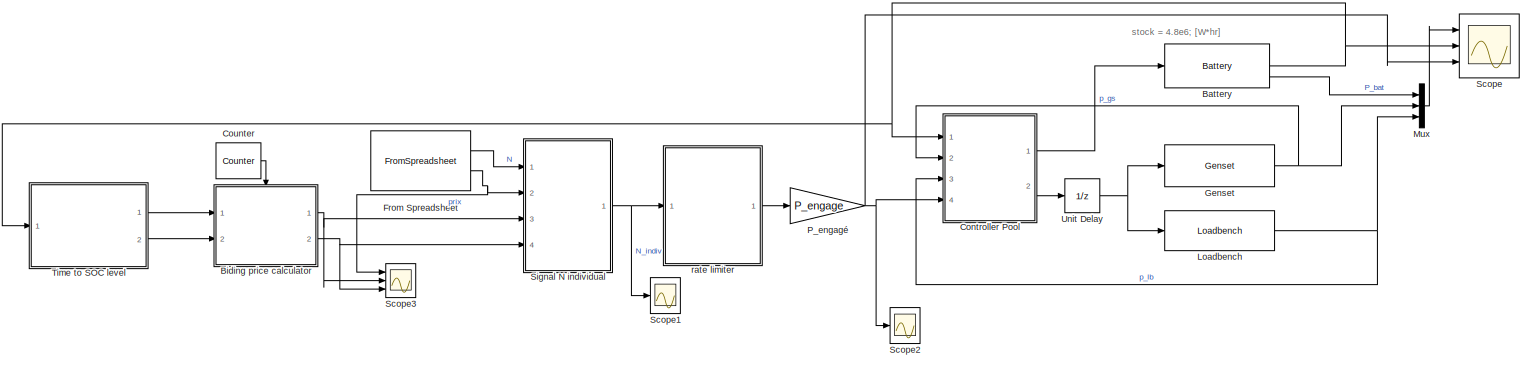
[diagram: root canvas - part 1/1, most of the canvas]
MODEL slx_1ad34d5d79cd
KIND model
CONFIG AbsTol = auto
CONFIG EnableMultiTasking = off
CONFIG FixedStep = auto
CONFIG MaxStep = auto
CONFIG MinStep = auto
CONFIG RelTol = 1e-3
CONFIG SampleTimeConstraint = Unconstrained
CONFIG SolverName = FixedStepDiscrete
CONFIG StartTime = 0.0
CONFIG StopTime = 2600000
BLOCK [Reference] Battery  REF=Assets/Battery
  Ports = [1, 3]
  SourceBlock = Assets/Battery
  SourceProductName = My Library
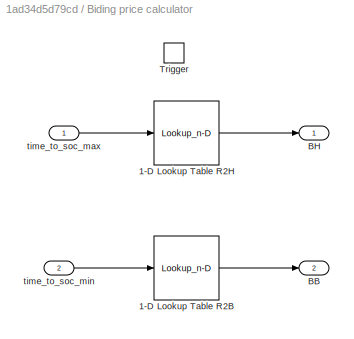
BLOCK [SubSystem] Biding price calculator
  Ports = [2, 2, 0, 1]
  RequestExecContextInheritance = off
  TreatAsAtomicUnit = on
BLOCK [Lookup_n-D] Biding price calculator/1-D Lookup Table R2B
  BeginIndexSearchUsingPreviousIndexResult = on
  BreakpointsForDimension1 = Breakpoints
  InputPortMap = u0
  InternalRulePriority = Speed
  NumberOfTableDimensions = 1
  Ports = [1, 1]
  RndMeth = Simplest
  Table = R2_B
BLOCK [Lookup_n-D] Biding price calculator/1-D Lookup Table R2H
  BeginIndexSearchUsingPreviousIndexResult = on
  BreakpointsForDimension1 = Breakpoints
  InputPortMap = u0
  InternalRulePriority = Speed
  NumberOfTableDimensions = 1
  Ports = [1, 1]
  RndMeth = Simplest
  Table = R2_H
BLOCK [Outport] Biding price calculator/BB
  Port = 2
BLOCK [Outport] Biding price calculator/BH
BLOCK [TriggerPort] Biding price calculator/Trigger
  Ports = []
  StatesWhenEnabling = held
  VariantControl = (inherit)
BLOCK [Inport] Biding price calculator/time_to_soc_max
BLOCK [Inport] Biding price calculator/time_to_soc_min
  Port = 2
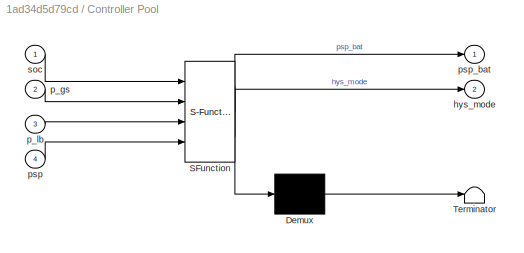
BLOCK [SubSystem] Controller Pool
  ErrorFcn = Stateflow.Translate.translate
  PermitHierarchicalResolution = ExplicitOnly
  Ports = [4, 2]
  RequestExecContextInheritance = off
  SFBlockType = Chart
  TreatAsAtomicUnit = on
BLOCK [Demux] Controller Pool/ Demux 
  Outputs = 1
  Ports = [1, 1]
BLOCK [S-Function] Controller Pool/ SFunction 
  EnableBusSupport = on
  FunctionName = sf_sfun
  Parameters = hys_max,hys_min,max_soc,min_soc
  PortCounts = [4 3]
  Ports = [4, 3]
  SFcnIsStateOwnerBlock = off
  SFunctionDeploymentMode = off
  Tag = Stateflow S-Function 1
BLOCK [Terminator] Controller Pool/ Terminator 
BLOCK [Outport] Controller Pool/hys_mode
  Port = 2
BLOCK [Inport] Controller Pool/p_gs
  Port = 2
BLOCK [Inport] Controller Pool/p_lb
  Port = 3
BLOCK [Inport] Controller Pool/psp
  Port = 4
BLOCK [Outport] Controller Pool/psp_bat
BLOCK [Inport] Controller Pool/soc
BLOCK [Reference] Counter  REF=eeGeneralControl/Counter
  Ports = [0, 1]
  SourceBlock = eeGeneralControl/Counter
  SourceProductBaseCode = PS
  SourceType = Counter
BLOCK [FromSpreadsheet] From Spreadsheet
  FileName = N_Jan.xlsx
  Ports = [0, 2]
  SheetName = 30
BLOCK [Reference] Genset  REF=Assets/Genset
  Ports = [1, 1]
  SourceBlock = Assets/Genset
  SourceProductName = My Library
BLOCK [Reference] Loadbench  REF=Assets/Loadbench
  Ports = [1, 1]
  SourceBlock = Assets/Loadbench
  SourceProductName = My Library
BLOCK [Mux] Mux
  DisplayOption = bar
  Inputs = 3
  Ports = [3, 1]
BLOCK [Gain] P_engagé
  Gain = P_engage
BLOCK [Scope] Scope
  Floating = off
  NumInputPorts = 3
  Ports = [3]
  ScopeSpecificationString = Simulink.scopes.TimeScopeBlockCfg('CurrentConfiguration', extmgr.ConfigurationSet(extmgr.Configuration('Core','General UI',true),extmgr.Configuration('Core','Source UI',true),extmgr.Configuration('Sources','WiredSimulink',true,'DataLoggingVariableName','ScopeData1'),extmgr.Configuration('Visuals','Time Domain',true,'SerializedDisplays',{struct('MinYLimReal','-6250000.00000','MaxYLimReal','6250000....<+2955ch>
BLOCK [Scope] Scope1
  Commented = on
  Floating = off
  NumInputPorts = 1
  Ports = [1]
  ScopeSpecificationString = Simulink.scopes.TimeScopeBlockCfg('CurrentConfiguration', extmgr.ConfigurationSet(extmgr.Configuration('Core','General UI',true),extmgr.Configuration('Core','Source UI',true),extmgr.Configuration('Sources','WiredSimulink',true,'DataLoggingVariableName','ScopeData2'),extmgr.Configuration('Visuals','Time Domain',true,'SerializedDisplays',{struct('MinYLimReal','-1.25','MaxYLimReal','1.25','YLabelReal...<+1464ch>
BLOCK [Scope] Scope2
  Commented = on
  Floating = off
  NumInputPorts = 1
  Ports = [1]
  ScopeSpecificationString = Simulink.scopes.TimeScopeBlockCfg('CurrentConfiguration', extmgr.ConfigurationSet(extmgr.Configuration('Core','General UI',true),extmgr.Configuration('Core','Source UI',true),extmgr.Configuration('Sources','WiredSimulink',true,'DataLoggingVariableName','ScopeData3'),extmgr.Configuration('Visuals','Time Domain',true,'SerializedDisplays',{struct('MinYLimReal','-5000000.00000','MaxYLimReal','5000000....<+1529ch>
BLOCK [Scope] Scope3
  Commented = on
  Floating = off
  NumInputPorts = 3
  Ports = [3]
  ScopeSpecificationString = Simulink.scopes.TimeScopeBlockCfg('CurrentConfiguration', extmgr.ConfigurationSet(extmgr.Configuration('Core','General UI',true),extmgr.Configuration('Core','Source UI',true),extmgr.Configuration('Sources','WiredSimulink',true),extmgr.Configuration('Visuals','Time Domain',true,'SerializedDisplays',{struct('MinYLimReal','-38.31213','MaxYLimReal','88.48695','YLabelReal','','MinYLimMag','0.00000','Ma...<+1490ch>
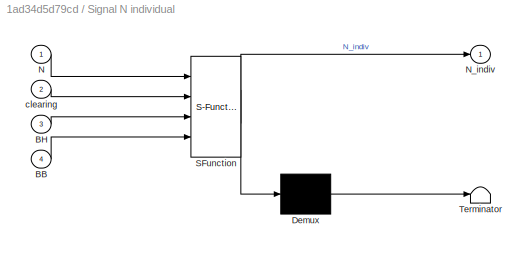
BLOCK [SubSystem] Signal N individual
  ErrorFcn = Stateflow.Translate.translate
  PermitHierarchicalResolution = ExplicitOnly
  Ports = [4, 1]
  RequestExecContextInheritance = off
  SFBlockType = Chart
  TreatAsAtomicUnit = on
BLOCK [Demux] Signal N individual/ Demux 
  Outputs = 1
  Ports = [1, 1]
BLOCK [S-Function] Signal N individual/ SFunction 
  EnableBusSupport = on
  FunctionName = sf_sfun
  PortCounts = [4 2]
  Ports = [4, 2]
  SFcnIsStateOwnerBlock = off
  SFunctionDeploymentMode = off
  Tag = Stateflow S-Function 3
BLOCK [Terminator] Signal N individual/ Terminator 
BLOCK [Inport] Signal N individual/BB
  Port = 4
BLOCK [Inport] Signal N individual/BH
  Port = 3
BLOCK [Inport] Signal N individual/N
BLOCK [Outport] Signal N individual/N_indiv
BLOCK [Inport] Signal N individual/clearing
  Port = 2
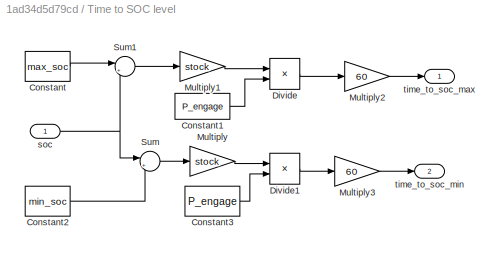
BLOCK [SubSystem] Time to SOC level
  Ports = [1, 2]
  RequestExecContextInheritance = off
BLOCK [Constant] Time to SOC level/Constant
  Value = max_soc
BLOCK [Constant] Time to SOC level/Constant1
  Value = P_engage
BLOCK [Constant] Time to SOC level/Constant2
  Value = min_soc
BLOCK [Constant] Time to SOC level/Constant3
  Value = P_engage
BLOCK [Product] Time to SOC level/Divide
  Inputs = */
  Ports = [2, 1]
BLOCK [Product] Time to SOC level/Divide1
  Inputs = */
  Ports = [2, 1]
BLOCK [Gain] Time to SOC level/Multiply
  Gain = stock
BLOCK [Gain] Time to SOC level/Multiply1
  Gain = stock
BLOCK [Gain] Time to SOC level/Multiply2
  Gain = 60
BLOCK [Gain] Time to SOC level/Multiply3
  Gain = 60
BLOCK [Sum] Time to SOC level/Sum
  Inputs = |+-
  NameLocation = top
  Ports = [2, 1]
BLOCK [Sum] Time to SOC level/Sum1
  Inputs = |+-
  Ports = [2, 1]
BLOCK [Inport] Time to SOC level/soc
  NameLocation = top
BLOCK [Outport] Time to SOC level/time_to_soc_max
BLOCK [Outport] Time to SOC level/time_to_soc_min
  Port = 2
BLOCK [UnitDelay] Unit Delay
  HasFrameUpgradeWarning = on
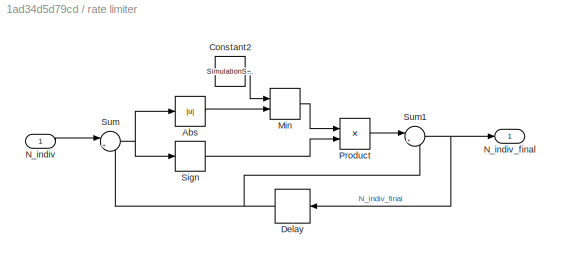
BLOCK [SubSystem] rate limiter
  Ports = [1, 1]
  RequestExecContextInheritance = off
BLOCK [Abs] rate limiter/Abs
  NameLocation = top
  SaturateOnIntegerOverflow = off
BLOCK [Constant] rate limiter/Constant2
  Value = SimulationStep/300
BLOCK [Delay] rate limiter/Delay
  DelayLength = 1
  InputPortMap = u0
  Ports = [1, 1]
BLOCK [MinMax] rate limiter/Min
  Inputs = 2
  Ports = [2, 1]
BLOCK [Inport] rate limiter/N_indiv
BLOCK [Outport] rate limiter/N_indiv_final
BLOCK [Product] rate limiter/Product
  Ports = [2, 1]
BLOCK [Signum] rate limiter/Sign
BLOCK [Sum] rate limiter/Sum
  Inputs = |+-
  Ports = [2, 1]
BLOCK [Sum] rate limiter/Sum1
  Inputs = |++
  Ports = [2, 1]
ANNOTATION (root): stock = 4.8e6; [W*hr]
NET Battery:2 -> Controller Pool:1, Scope:2, Time to SOC level:1
LINE Battery:3 -> Mux:1
LINE Biding price calculator/1-D Lookup Table R2B:1 -> Biding price calculator/BB:1
LINE Biding price calculator/1-D Lookup Table R2H:1 -> Biding price calculator/BH:1
LINE Biding price calculator/time_to_soc_max:1 -> Biding price calculator/1-D Lookup Table R2H:1
LINE Biding price calculator/time_to_soc_min:1 -> Biding price calculator/1-D Lookup Table R2B:1
NET Biding price calculator:1 -> Scope3:2, Signal N individual:3
NET Biding price calculator:2 -> Scope3:3, Signal N individual:4
LINE Controller Pool:1 -> Battery:1
LINE Controller Pool:2 -> Unit Delay:1
LINE Counter:1 -> Biding price calculator:trigger
LINE From Spreadsheet:1 -> Signal N individual:1
NET From Spreadsheet:2 -> Scope3:1, Signal N individual:2
NET Genset:1 -> Controller Pool:2, Mux:2
NET Loadbench:1 -> Controller Pool:3, Mux:3
LINE Mux:1 -> Scope:1
NET P_engagé:1 -> Controller Pool:4, Scope2:1, Scope:3
NET Signal N individual:1 -> Scope1:1, rate limiter:1
LINE Time to SOC level/Constant1:1 -> Time to SOC level/Divide:2
LINE Time to SOC level/Constant2:1 -> Time to SOC level/Sum:2
LINE Time to SOC level/Constant3:1 -> Time to SOC level/Divide1:2
LINE Time to SOC level/Constant:1 -> Time to SOC level/Sum1:1
LINE Time to SOC level/Divide1:1 -> Time to SOC level/Multiply3:1
LINE Time to SOC level/Divide:1 -> Time to SOC level/Multiply2:1
LINE Time to SOC level/Multiply1:1 -> Time to SOC level/Divide:1
LINE Time to SOC level/Multiply2:1 -> Time to SOC level/time_to_soc_max:1
LINE Time to SOC level/Multiply3:1 -> Time to SOC level/time_to_soc_min:1
LINE Time to SOC level/Multiply:1 -> Time to SOC level/Divide1:1
LINE Time to SOC level/Sum1:1 -> Time to SOC level/Multiply1:1
LINE Time to SOC level/Sum:1 -> Time to SOC level/Multiply:1
NET Time to SOC level/soc:1 -> Time to SOC level/Sum1:2, Time to SOC level/Sum:1
LINE Time to SOC level:1 -> Biding price calculator:1
LINE Time to SOC level:2 -> Biding price calculator:2
NET Unit Delay:1 -> Genset:1, Loadbench:1
LINE rate limiter/Abs:1 -> rate limiter/Min:2
LINE rate limiter/Constant2:1 -> rate limiter/Min:1
NET rate limiter/Delay:1 -> rate limiter/Sum1:2, rate limiter/Sum:2
LINE rate limiter/Min:1 -> rate limiter/Product:1
LINE rate limiter/N_indiv:1 -> rate limiter/Sum:1
LINE rate limiter/Product:1 -> rate limiter/Sum1:1
LINE rate limiter/Sign:1 -> rate limiter/Product:2
NET rate limiter/Sum1:1 -> rate limiter/Delay:1, rate limiter/N_indiv_final:1
NET rate limiter/Sum:1 -> rate limiter/Abs:1, rate limiter/Sign:1
LINE rate limiter:1 -> P_engagé:1
note: NET lines group one-source signal fan-out (src -> all destinations, sorted); 1:1 wires keep LINE
CHART Controller Pool states=19 transitions=27
  STATE_LABEL '?'
  STATE_LABEL 'Battery1\nentry : p_cons = psp_bat;\nduring :\npsp_gs = 0;\npsp_lb = 0;\n'
  STATE_LABEL 'Genset1\nentry : p_cons = psp_gs;\nduring :\npsp_lb = 0;\npsp_bat = 0;\n'
  STATE_LABEL 'Loadbench1\nentry : p_cons = psp_lb\nduring :\npsp_gs = 0;\npsp_bat = 0;\n'
  STATE_LABEL '[SOC < min_soc && p_cons >=0]'
  STATE_LABEL '[min_soc < SOC < max_soc]'
  STATE_LABEL '[SOC > max_soc && p_cons <=0]'
  STATE_LABEL '[min_soc < SOC < max_soc]'
  STATE_LABEL 'Battery1\nentry : p_cons = psp_bat;\nduring :\npsp_gs = 0;\npsp_lb = 0;\n'
  STATE_LABEL 'Genset1\nentry : p_cons = psp_gs;\nduring :\npsp_lb = 0;\npsp_bat = 0;\n'
  STATE_LABEL 'Loadbench1\nentry : p_cons = psp_lb\nduring :\npsp_gs = 0;\npsp_bat = 0;\n'
  STATE_LABEL 'Hysteresis_mode'
  STATE_LABEL 'Mode___1\nen : hys_mode = -1;\ndu : psp_bat = psp - p_lb - p_gs;'
  STATE_LABEL 'Mode_0\nen : hys_mode = 0;\ndu : psp_bat = psp - p_lb - p_gs;'
  STATE_LABEL 'Mode_1\nen : hys_mode = 1;\ndu : psp_bat = psp - p_lb - p_gs;'
  STATE_LABEL '[soc <= min_soc]'
  STATE_LABEL '[soc >= max_soc]'
  STATE_LABEL '[soc >= hys_min]'
  STATE_LABEL '[soc <= hys_max]'
  STATE_LABEL 'Mode___1\nen : hys_mode = -1;\ndu : psp_bat = psp - p_lb - p_gs;'
  STATE_LABEL 'Mode_0\nen : hys_mode = 0;\ndu : psp_bat = psp - p_lb - p_gs;'
  STATE_LABEL 'Mode_1\nen : hys_mode = 1;\ndu : psp_bat = psp - p_lb - p_gs;'
  STATE_LABEL 'Dispatcher1\n'
  STATE_LABEL 'Battery1\nen :\nhys_mode = 0;\np_cons = psp_bat;'
  STATE_LABEL 'LB_off\nen : hys_mode = 0;\ndu : p_cons = psp_bat;'
  STATE_LABEL 'LB_on\nen : hys_mode = 1;\ndu : p_cons = psp_lb;'
  STATE_LABEL 'GS_on\nen : hys_mode = -1;\ndu : p_cons = psp_gs;'
  STATE_LABEL 'GS_off\nen : hys_mode = 0;\ndu : p_cons = psp_bat;'
  STATE_LABEL '[soc >= hys_min]'
  STATE_LABEL '[soc >= hys_max]'
  STATE_LABEL '[soc <= hys_min]'
  STATE_LABEL '[soc <= hys_max]'
  STATE_LABEL 'Battery1\nen :\nhys_mode = 0;\np_cons = psp_bat;'
  STATE_LABEL 'LB_off\nen : hys_mode = 0;\ndu : p_cons = psp_bat;'
  STATE_LABEL 'LB_on\nen : hys_mode = 1;\ndu : p_cons = psp_lb;'
  STATE_LABEL 'GS_on\nen : hys_mode = -1;\ndu : p_cons = psp_gs;'
  STATE_LABEL 'GS_off\nen : hys_mode = 0;\ndu : p_cons = psp_bat;'
  STATE_LABEL 'start_order'
  STATE_LABEL '% start_order'
  STATE_LABEL '[psp_gs > 0]'
CHART Signal N individual states=3 transitions=5
  STATE_LABEL 'Baisse\nen :  N_indiv = -1;'
  STATE_LABEL 'N_0\nen : N_indiv = 0;\n'
  STATE_LABEL 'Hausse\nen : N_indiv = 1;\n'
CHART  states=0 transitions=0
CHART  states=0 transitions=0
